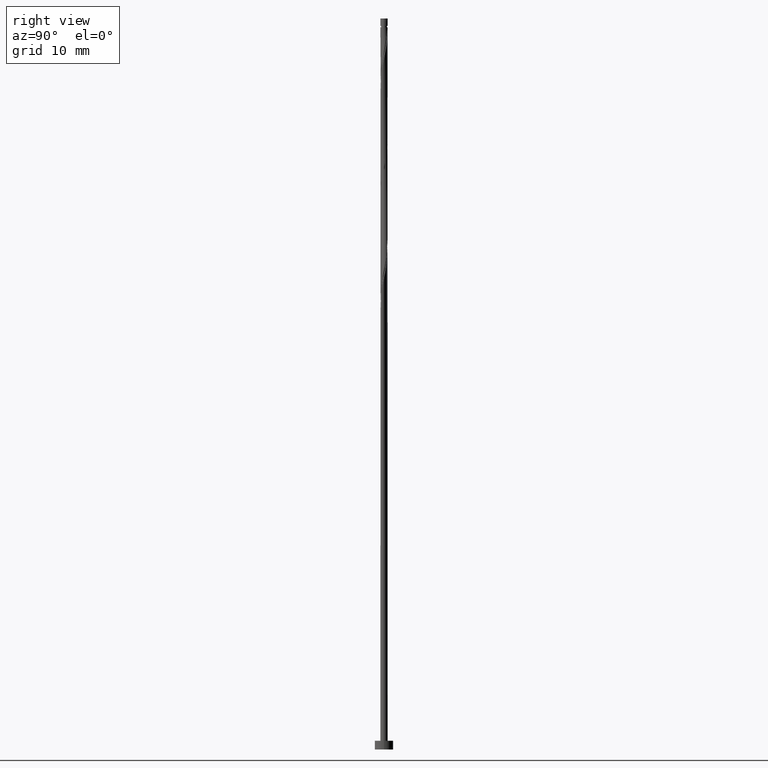
[diagram: clean part render]
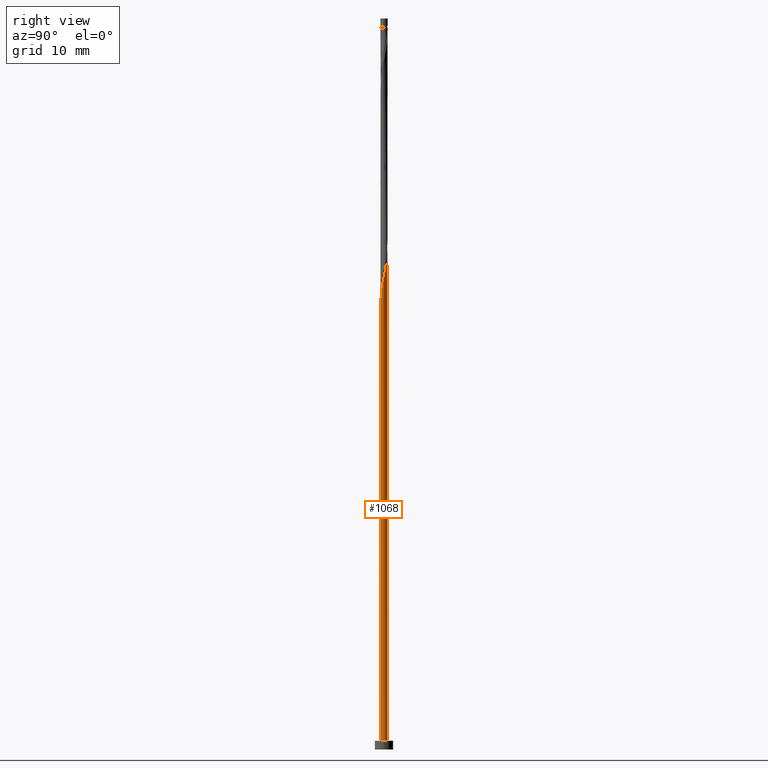
[diagram: same view with one face highlighted and labeled with its STEP entity id]
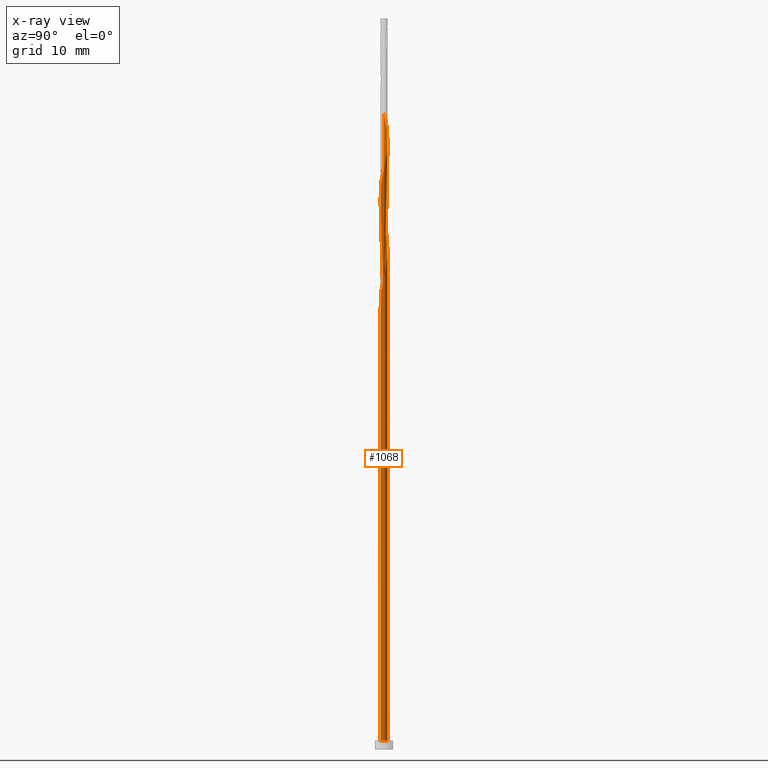
[diagram: x-ray of the same camera — body ghosted, the highlighted face saturated]
A machine part, right view. The second image highlights one B-rep face of the part: STEP entity #1068.
The next image is the same camera in x-ray: the body ghosted, the highlighted face saturated — about 0% of this face is hidden behind the body in this view.
In plain terms, the highlighted cylindrical surface (bore or boss wall) has radius 0.5 mm, axis along (-0, -0, -1).
Its self-contained STEP definition (entity closure, byte-faithful):
#3 = CARTESIAN_POINT ( 'NONE',  ( -0.4329970070769387780, 0.2651158103430555912, 56.71666666666666856 ) ) ;
#4 = CARTESIAN_POINT ( 'NONE',  ( 0.4460955302404527867, -0.2424285027197316811, 78.38333333333333997 ) ) ;
#11 = CARTESIAN_POINT ( 'NONE',  ( -0.2610881054719552674, 0.4264188096004513095, 84.63333333333332575 ) ) ;
#19 = CARTESIAN_POINT ( 'NONE',  ( -0.3911863884632766908, 0.3114052174917099070, 70.46666666666668277 ) ) ;
#24 = CARTESIAN_POINT ( 'NONE',  ( -0.5000000000000005551, 0.006450837166012286447, 57.99715376295075231 ) ) ;
#25 = CARTESIAN_POINT ( 'NONE',  ( -0.07409163498720072738, -0.4944799587697403798, 60.46666666666666146 ) ) ;
#28 =( BOUNDED_CURVE ( )  B_SPLINE_CURVE ( 2, ( #1048, #1336, #85, #518, #1256, #552, #332, #323, #109, #881, #25, #229, #1365, #1266, #982, #749, #855, #102, #862, #774, #316, #742, #1180, #967, #1064, #1280, #206, #974, #757, #220, #199, #1087, #1175, #633, #19, #654, #213, #457, #450, #1060, #1167, #96, #959, #442, #537, #560, #1079, #118, #647, #638, #872, #1287, #340, #4, #766, #530, #434, #1188, #662, #127, #1273, #1296, #427, #1072, #349, #952, #850, #545, #11, #914, #363, #1100, #1214, #1196, #1124 ),
 .UNSPECIFIED., .F., .T. ) 
 B_SPLINE_CURVE_WITH_KNOTS ( ( 3, 2, 2, 2, 2, 2, 2, 2, 2, 2, 2, 2, 2, 2, 2, 2, 2, 2, 2, 2, 2, 2, 2, 2, 2, 2, 2, 2, 2, 2, 2, 2, 2, 2, 2, 2, 2, 3 ),
 ( 0.05452480538552907652, 0.05555555555555558023, 0.06944444444444441977, 0.08333333333333337034, 0.09722222222222220989, 0.1111111111111111605, 0.1250000000000000000, 0.1388888888888888395, 0.1527777777777777901, 0.1666666666666666297, 0.1805555555555555802, 0.1944444444444444198, 0.2083333333333333703, 0.2222222222222222099, 0.2361111111111111605, 0.2500000000000000000, 0.2638888888888888395, 0.2777777777777777901, 0.2916666666666666297, 0.3055555555555555802, 0.3194444444444444198, 0.3333333333333333703, 0.3472222222222222099, 0.3611111111111111605, 0.3750000000000000000, 0.3888888888888888395, 0.4027777777777777901, 0.4166666666666666297, 0.4305555555555555802, 0.4444444444444444198, 0.4583333333333333703, 0.4722222222222222099, 0.4861111111111111605, 0.5000000000000000000, 0.5138888888888888395, 0.5277777777777777901, 0.5416666666666667407, 0.5545248053855292847 ),
 .UNSPECIFIED. ) 
 CURVE ( )  GEOMETRIC_REPRESENTATION_ITEM ( )  RATIONAL_B_SPLINE_CURVE ( ( 0.9071930855141276950, 0.9080659294509753066, 0.9090909090909153889, 0.8952797754656498519, 0.9090909090909153889, 0.8952797754656498519, 0.9090909090909153889, 0.8952797754656498519, 0.9090909090909153889, 0.8952797754656498519, 0.9090909090909153889, 0.8952797754656498519, 0.9090909090909153889, 0.8952797754656498519, 0.9090909090909153889, 0.8952797754656498519, 0.9090909090909153889, 0.8952797754656498519, 0.9090909090909153889, 0.8952797754656498519, 0.9090909090909153889, 0.8952797754656498519, 0.9090909090909153889, 0.8952797754656498519, 0.9090909090909153889, 0.8952797754656498519, 0.9090909090909153889, 0.8952797754656498519, 0.9090909090909153889, 0.8952797754656498519, 0.9090909090909153889, 0.8952797754656498519, 0.9090909090909153889, 0.8952797754656498519, 0.9090909090909153889, 0.8952797754656498519, 0.9090909090909153889, 0.8952797754656498519, 0.9090909090909153889, 0.8952797754656498519, 0.9090909090909153889, 0.8952797754656498519, 0.9090909090909153889, 0.8952797754656498519, 0.9090909090909153889, 0.8952797754656498519, 0.9090909090909153889, 0.8952797754656498519, 0.9090909090909153889, 0.8952797754656498519, 0.9090909090909153889, 0.8952797754656498519, 0.9090909090909153889, 0.8952797754656498519, 0.9090909090909153889, 0.8952797754656498519, 0.9090909090909153889, 0.8952797754656498519, 0.9090909090909153889, 0.8952797754656498519, 0.9090909090909153889, 0.8952797754656498519, 0.9090909090909153889, 0.8952797754656498519, 0.9090909090909153889, 0.8952797754656498519, 0.9090909090909153889, 0.8952797754656498519, 0.9090909090909153889, 0.8952797754656498519, 0.9090909090909153889, 0.8952797754656498519, 0.9090909090909153889, 0.8963047551055898232, 0.9071930855141279171 ) ) 
 REPRESENTATION_ITEM ( '' )  );
#73 = ORIENTED_EDGE ( 'NONE', *, *, #576, .T. ) ;
#77 = EDGE_CURVE ( 'NONE', #803, #916, #131, .T. ) ;
#85 = CARTESIAN_POINT ( 'NONE',  ( -0.4998335745014880205, -0.01289952716443847763, 57.13333333333333997 ) ) ;
#96 = CARTESIAN_POINT ( 'NONE',  ( -0.4329970070769388890, -0.2651158103430555912, 73.38333333333331154 ) ) ;
#102 = CARTESIAN_POINT ( 'NONE',  ( 0.4460955302404527867, -0.2424285027197316811, 63.38333333333333286 ) ) ;
#103 = CARTESIAN_POINT ( 'NONE',  ( -0.4741018197097065512, 0.1588315603019300748, 56.30000000000001137 ) ) ;
#108 = CARTESIAN_POINT ( 'NONE',  ( -0.5000000000000006661, -4.855164127740446616E-16, 58.02776939948987689 ) ) ;
#109 = CARTESIAN_POINT ( 'NONE',  ( -0.2387454690295328918, -0.4393183367648896831, 59.63333333333333286 ) ) ;
#116 = CARTESIAN_POINT ( 'NONE',  ( -0.2387454690295328086, 0.4393183367648896831, 55.46666666666666856 ) ) ;
#118 = CARTESIAN_POINT ( 'NONE',  ( 0.01309852316351374675, -0.5075443130627872446, 75.88333333333333997 ) ) ;
#127 = CARTESIAN_POINT ( 'NONE',  ( 0.4329970070769391111, 0.2651158103430553137, 80.88333333333332575 ) ) ;
#131 = LINE ( 'NONE', #151, #1026 ) ;
#141 = DIRECTION ( 'NONE',  ( 0.000000000000000000, 0.000000000000000000, 1.000000000000000000 ) ) ;
#151 = CARTESIAN_POINT ( 'NONE',  ( -0.5000000000000000000, 0.000000000000000000, 100.0000000000000000 ) ) ;
#164 = DIRECTION ( 'NONE',  ( 1.000000000000000000, 0.000000000000000000, 0.000000000000000000 ) ) ;
#176 = EDGE_CURVE ( 'NONE', #1197, #1239, #951, .T. ) ;
#199 = CARTESIAN_POINT ( 'NONE',  ( -0.09949874371066179390, 0.4900000000000008238, 68.79999999999996874 ) ) ;
#206 = CARTESIAN_POINT ( 'NONE',  ( 0.2387454690295330029, 0.4393183367648896831, 67.13333333333333997 ) ) ;
#213 = CARTESIAN_POINT ( 'NONE',  ( -0.4741018197097065512, 0.1588315603019300748, 71.30000000000002558 ) ) ;
#217 = EDGE_CURVE ( 'NONE', #690, #1226, #259, .T. ) ;
#220 = CARTESIAN_POINT ( 'NONE',  ( -0.01309852316351389420, 0.5075443130627871335, 68.38333333333332575 ) ) ;
#229 = CARTESIAN_POINT ( 'NONE',  ( 0.01309852316351374675, -0.5075443130627872446, 60.88333333333334707 ) ) ;
#237 = ORIENTED_EDGE ( 'NONE', *, *, #1308, .F. ) ;
#238 = DIRECTION ( 'NONE',  ( 0.000000000000000000, -0.000000000000000000, -1.000000000000000000 ) ) ;
#239 = DIRECTION ( 'NONE',  ( 0.000000000000000000, 0.000000000000000000, 1.000000000000000000 ) ) ;
#259 = CIRCLE ( 'NONE', #514, 0.5000000000000000000 ) ;
#264 = EDGE_CURVE ( 'NONE', #1288, #1239, #1176, .T. ) ;
#316 = CARTESIAN_POINT ( 'NONE',  ( 0.4998335745014880205, 0.01289952716443851580, 64.63333333333333997 ) ) ;
#323 = CARTESIAN_POINT ( 'NONE',  ( -0.3162091449211504868, -0.3972210690530860178, 59.21666666666666856 ) ) ;
#332 = CARTESIAN_POINT ( 'NONE',  ( -0.3746030759990447989, -0.3311684396980705825, 58.80000000000001137 ) ) ;
#340 = CARTESIAN_POINT ( 'NONE',  ( 0.3911863884632766908, -0.3114052174917099070, 77.96666666666665435 ) ) ;
#342 = CARTESIAN_POINT ( 'NONE',  ( -0.3911863884632766908, 0.3114052174917099070, 55.46666666666667567 ) ) ;
#349 = CARTESIAN_POINT ( 'NONE',  ( 0.07409163498720100494, 0.4944799587697403798, 82.96666666666666856 ) ) ;
#356 = EDGE_CURVE ( 'NONE', #690, #1288, #789, .T. ) ;
#357 = CARTESIAN_POINT ( 'NONE',  ( 0.000000000000000000, 0.000000000000000000, 100.0000000000000000 ) ) ;
#363 = CARTESIAN_POINT ( 'NONE',  ( -0.3911863884632766908, 0.3114052174917099070, 85.46666666666666856 ) ) ;
#389 = CYLINDRICAL_SURFACE ( 'NONE', #544, 0.5000000000000000000 ) ;
#391 = ORIENTED_EDGE ( 'NONE', *, *, #356, .F. ) ;
#398 = ORIENTED_EDGE ( 'NONE', *, *, #176, .T. ) ;
#427 = CARTESIAN_POINT ( 'NONE',  ( 0.2387454690295330029, 0.4393183367648896831, 82.13333333333335418 ) ) ;
#434 = CARTESIAN_POINT ( 'NONE',  ( 0.4998335745014880205, 0.01289952716443851580, 79.63333333333333997 ) ) ;
#442 = CARTESIAN_POINT ( 'NONE',  ( -0.3162091449211504868, -0.3972210690530860178, 74.21666666666671119 ) ) ;
#447 = VECTOR ( 'NONE', #1366, 1000.000000000000000 ) ;
#450 = CARTESIAN_POINT ( 'NONE',  ( -0.4998335745014880205, -0.01289952716443847763, 72.13333333333333997 ) ) ;
#452 = CARTESIAN_POINT ( 'NONE',  ( -0.1858989642578099122, 0.4724556869372144030, 54.21666666666667567 ) ) ;
#456 = CARTESIAN_POINT ( 'NONE',  ( -0.3162091449211504313, 0.3972210690530858512, 55.88333333333333286 ) ) ;
#457 = CARTESIAN_POINT ( 'NONE',  ( -0.5021081091789604267, 0.07523461788412853790, 71.71666666666666856 ) ) ;
#464 = ORIENTED_EDGE ( 'NONE', *, *, #77, .F. ) ;
#505 = EDGE_LOOP ( 'NONE', ( #464, #991, #1216, #73, #398, #983, #391, #1335, #237 ) ) ;
#514 = AXIS2_PLACEMENT_3D ( 'NONE', #1190, #238, #1169 ) ;
#518 = CARTESIAN_POINT ( 'NONE',  ( -0.4975590398240160028, -0.1010336722130054932, 57.54999999999999716 ) ) ;
#530 = CARTESIAN_POINT ( 'NONE',  ( 0.5021081091789604267, -0.07523461788412882933, 79.21666666666668277 ) ) ;
#537 = CARTESIAN_POINT ( 'NONE',  ( -0.2387454690295328918, -0.4393183367648896831, 74.63333333333331154 ) ) ;
#543 = CARTESIAN_POINT ( 'NONE',  ( -0.1612817931379151581, 0.4814156044766936260, 55.04999999999999716 ) ) ;
#544 = AXIS2_PLACEMENT_3D ( 'NONE', #357, #1224, #1013 ) ;
#545 = CARTESIAN_POINT ( 'NONE',  ( -0.1858989642578099122, 0.4724556869372144030, 84.21666666666665435 ) ) ;
#552 = CARTESIAN_POINT ( 'NONE',  ( -0.4329970070769388890, -0.2651158103430555912, 58.38333333333332575 ) ) ;
#560 = CARTESIAN_POINT ( 'NONE',  ( -0.1612817931379152137, -0.4814156044766937370, 75.05000000000001137 ) ) ;
#564 = CARTESIAN_POINT ( 'NONE',  ( 0.000000000000000000, 0.000000000000000000, 1.199999999999999956 ) ) ;
#576 = EDGE_CURVE ( 'NONE', #1239, #1197, #639, .T. ) ;
#602 = CARTESIAN_POINT ( 'NONE',  ( -0.5000000000000007772, -9.803696796398973244E-17, 87.07223060051012453 ) ) ;
#633 = CARTESIAN_POINT ( 'NONE',  ( -0.3362772466861007059, 0.3803819322636883271, 70.04999999999998295 ) ) ;
#637 = CARTESIAN_POINT ( 'NONE',  ( 0.09949874371066202983, 0.4900000000000007683, 53.79999999999999716 ) ) ;
#638 = CARTESIAN_POINT ( 'NONE',  ( 0.1858989642578097734, -0.4724556869372145695, 76.71666666666665435 ) ) ;
#639 = CIRCLE ( 'NONE', #948, 0.5000000000000000000 ) ;
#647 = CARTESIAN_POINT ( 'NONE',  ( 0.09949874371066182166, -0.4900000000000008238, 76.30000000000002558 ) ) ;
#654 = CARTESIAN_POINT ( 'NONE',  ( -0.4460955302404527867, 0.2424285027197316256, 70.88333333333332575 ) ) ;
#662 = CARTESIAN_POINT ( 'NONE',  ( 0.4652780234504774182, 0.1830747412780303895, 80.46666666666668277 ) ) ;
#664 = CARTESIAN_POINT ( 'NONE',  ( -0.3362772466861007059, 0.3803819322636883271, 55.05000000000001137 ) ) ;
#675 = CARTESIAN_POINT ( 'NONE',  ( -0.5000000000000007772, 5.434049081432574150E-16, 57.07223060051013164 ) ) ;
#686 = DIRECTION ( 'NONE',  ( -0.000000000000000000, -0.000000000000000000, -1.000000000000000000 ) ) ;
#690 = VERTEX_POINT ( 'NONE', #691 ) ;
#691 = CARTESIAN_POINT ( 'NONE',  ( -0.09949874371066178003, 0.4900000000000008793, 53.79999999999999716 ) ) ;
#741 = CARTESIAN_POINT ( 'NONE',  ( -0.07409163498720063024, 0.4944799587697402687, 54.63333333333333286 ) ) ;
#742 = CARTESIAN_POINT ( 'NONE',  ( 0.4975590398240160028, 0.1010336722130053960, 65.04999999999999716 ) ) ;
#748 = CARTESIAN_POINT ( 'NONE',  ( 0.01309852316351392196, 0.5075443130627870225, 54.21666666666666146 ) ) ;
#749 = CARTESIAN_POINT ( 'NONE',  ( 0.3362772466861005394, -0.3803819322636883271, 62.55000000000001137 ) ) ;
#750 = AXIS2_PLACEMENT_3D ( 'NONE', #564, #239, #1103 ) ;
#757 = CARTESIAN_POINT ( 'NONE',  ( 0.07409163498720100494, 0.4944799587697403798, 67.96666666666666856 ) ) ;
#759 = CARTESIAN_POINT ( 'NONE',  ( -0.2610881054719552674, 0.4264188096004513095, 54.63333333333332575 ) ) ;
#765 = CARTESIAN_POINT ( 'NONE',  ( -0.4975590398240158918, 0.1010336722130055070, 57.55000000000001137 ) ) ;
#766 = CARTESIAN_POINT ( 'NONE',  ( 0.4741018197097065512, -0.1588315603019302691, 78.80000000000001137 ) ) ;
#774 = CARTESIAN_POINT ( 'NONE',  ( 0.5021081091789604267, -0.07523461788412882933, 64.21666666666666856 ) ) ;
#789 =( BOUNDED_CURVE ( )  B_SPLINE_CURVE ( 2, ( #1081, #452, #759, #664, #342, #865, #103, #1289, #1281 ),
 .UNSPECIFIED., .F., .T. ) 
 B_SPLINE_CURVE_WITH_KNOTS ( ( 3, 2, 2, 2, 3 ),
 ( 0.000000000000000000, 0.01388888888888883955, 0.02777777777777779011, 0.04166666666666662966, 0.05452480538552906958 ),
 .UNSPECIFIED. ) 
 CURVE ( )  GEOMETRIC_REPRESENTATION_ITEM ( )  RATIONAL_B_SPLINE_CURVE ( ( 0.9090909090909153889, 0.8952797754656498519, 0.9090909090909153889, 0.8952797754656498519, 0.9090909090909153889, 0.8952797754656498519, 0.9090909090909153889, 0.8963047551055899342, 0.9071930855141276950 ) ) 
 REPRESENTATION_ITEM ( '' )  );
#801 = CARTESIAN_POINT ( 'NONE',  ( 0.5000000000000000000, 0.000000000000000000, 1.199999999999999956 ) ) ;
#803 = VERTEX_POINT ( 'NONE', #602 ) ;
#850 = CARTESIAN_POINT ( 'NONE',  ( -0.09949874371066179390, 0.4900000000000008238, 83.80000000000002558 ) ) ;
#855 = CARTESIAN_POINT ( 'NONE',  ( 0.3911863884632766908, -0.3114052174917099070, 62.96666666666668277 ) ) ;
#862 = CARTESIAN_POINT ( 'NONE',  ( 0.4741018197097065512, -0.1588315603019302691, 63.79999999999999716 ) ) ;
#865 = CARTESIAN_POINT ( 'NONE',  ( -0.4460955302404527867, 0.2424285027197316256, 55.88333333333333997 ) ) ;
#870 = CARTESIAN_POINT ( 'NONE',  ( -0.3746030759990446324, 0.3311684396980706935, 56.29999999999999716 ) ) ;
#872 = CARTESIAN_POINT ( 'NONE',  ( 0.2610881054719552119, -0.4264188096004513095, 77.13333333333329733 ) ) ;
#881 = CARTESIAN_POINT ( 'NONE',  ( -0.1612817931379152137, -0.4814156044766937370, 60.04999999999999716 ) ) ;
#914 = CARTESIAN_POINT ( 'NONE',  ( -0.3362772466861007059, 0.3803819322636883271, 85.04999999999998295 ) ) ;
#916 = VERTEX_POINT ( 'NONE', #1261 ) ;
#948 = AXIS2_PLACEMENT_3D ( 'NONE', #1227, #141, #164 ) ;
#951 = CIRCLE ( 'NONE', #750, 0.5000000000000000000 ) ;
#952 = CARTESIAN_POINT ( 'NONE',  ( -0.01309852316351389420, 0.5075443130627871335, 83.38333333333332575 ) ) ;
#959 = CARTESIAN_POINT ( 'NONE',  ( -0.3746030759990447989, -0.3311684396980705825, 73.80000000000001137 ) ) ;
#960 = CARTESIAN_POINT ( 'NONE',  ( -0.5000000000000000000, 0.000000000000000000, 100.0000000000000000 ) ) ;
#966 = EDGE_CURVE ( 'NONE', #1288, #803, #28, .T. ) ;
#967 = CARTESIAN_POINT ( 'NONE',  ( 0.4329970070769391111, 0.2651158103430553137, 65.88333333333333997 ) ) ;
#974 = CARTESIAN_POINT ( 'NONE',  ( 0.1612817931379155190, 0.4814156044766936260, 67.54999999999999716 ) ) ;
#982 = CARTESIAN_POINT ( 'NONE',  ( 0.2610881054719552119, -0.4264188096004513095, 62.13333333333333997 ) ) ;
#983 = ORIENTED_EDGE ( 'NONE', *, *, #264, .F. ) ;
#991 = ORIENTED_EDGE ( 'NONE', *, *, #966, .F. ) ;
#993 =( BOUNDED_CURVE ( )  B_SPLINE_CURVE ( 2, ( #108, #24, #1086, #765, #1187, #3, #870, #456, #116, #543, #741, #748, #637 ),
 .UNSPECIFIED., .F., .T. ) 
 B_SPLINE_CURVE_WITH_KNOTS ( ( 3, 2, 2, 2, 2, 2, 3 ),
 ( 0.9295248053855293957, 0.9305555555555555802, 0.9444444444444444198, 0.9583333333333333703, 0.9722222222222222099, 0.9861111111111111605, 1.000000000000000000 ),
 .UNSPECIFIED. ) 
 CURVE ( )  GEOMETRIC_REPRESENTATION_ITEM ( )  RATIONAL_B_SPLINE_CURVE ( ( 0.9071930855141279171, 0.9080659294509753066, 0.9090909090909150558, 0.8952797754656496299, 0.9090909090909150558, 0.8952797754656496299, 0.9090909090909150558, 0.8952797754656496299, 0.9090909090909150558, 0.8952797754656496299, 0.9090909090909150558, 0.8952797754656496299, 0.9090909090909150558 ) ) 
 REPRESENTATION_ITEM ( '' )  );
#998 = CARTESIAN_POINT ( 'NONE',  ( 0.09949874371066201595, 0.4900000000000007683, 53.79999999999999716 ) ) ;
#1013 = DIRECTION ( 'NONE',  ( -1.000000000000000000, 0.000000000000000000, 0.000000000000000000 ) ) ;
#1026 = VECTOR ( 'NONE', #686, 1000.000000000000000 ) ;
#1048 = CARTESIAN_POINT ( 'NONE',  ( -0.5000000000000007772, 5.434049081432574150E-16, 57.07223060051013164 ) ) ;
#1060 = CARTESIAN_POINT ( 'NONE',  ( -0.4975590398240160028, -0.1010336722130054932, 72.55000000000001137 ) ) ;
#1064 = CARTESIAN_POINT ( 'NONE',  ( 0.3746030759990447989, 0.3311684396980708045, 66.29999999999998295 ) ) ;
#1068 = ADVANCED_FACE ( 'NONE', ( #1307 ), #389, .T. ) ;
#1072 = CARTESIAN_POINT ( 'NONE',  ( 0.1612817931379155190, 0.4814156044766936260, 82.55000000000001137 ) ) ;
#1079 = CARTESIAN_POINT ( 'NONE',  ( -0.07409163498720072738, -0.4944799587697403798, 75.46666666666666856 ) ) ;
#1081 = CARTESIAN_POINT ( 'NONE',  ( -0.09949874371066179390, 0.4900000000000008793, 53.79999999999999716 ) ) ;
#1086 = CARTESIAN_POINT ( 'NONE',  ( -0.4998335745014880205, 0.01289952716443853141, 57.96666666666667567 ) ) ;
#1087 = CARTESIAN_POINT ( 'NONE',  ( -0.1858989642578099122, 0.4724556869372144030, 69.21666666666666856 ) ) ;
#1100 = CARTESIAN_POINT ( 'NONE',  ( -0.4460955302404527867, 0.2424285027197316256, 85.88333333333335418 ) ) ;
#1103 = DIRECTION ( 'NONE',  ( 1.000000000000000000, 0.000000000000000000, 0.000000000000000000 ) ) ;
#1124 = CARTESIAN_POINT ( 'NONE',  ( -0.5000000000000007772, -9.803696796398973244E-17, 87.07223060051012453 ) ) ;
#1167 = CARTESIAN_POINT ( 'NONE',  ( -0.4652780234504773071, -0.1830747412780305006, 72.96666666666665435 ) ) ;
#1169 = DIRECTION ( 'NONE',  ( -1.000000000000000000, 0.000000000000000000, 0.000000000000000000 ) ) ;
#1175 = CARTESIAN_POINT ( 'NONE',  ( -0.2610881054719552674, 0.4264188096004513095, 69.63333333333335418 ) ) ;
#1176 = LINE ( 'NONE', #960, #447 ) ;
#1180 = CARTESIAN_POINT ( 'NONE',  ( 0.4652780234504774182, 0.1830747412780303895, 65.46666666666666856 ) ) ;
#1187 = CARTESIAN_POINT ( 'NONE',  ( -0.4652780234504771961, 0.1830747412780305838, 57.13333333333332575 ) ) ;
#1188 = CARTESIAN_POINT ( 'NONE',  ( 0.4975590398240160028, 0.1010336722130053960, 80.04999999999998295 ) ) ;
#1190 = CARTESIAN_POINT ( 'NONE',  ( 0.000000000000000000, 0.000000000000000000, 53.80000000000000426 ) ) ;
#1196 = CARTESIAN_POINT ( 'NONE',  ( -0.5000000000000011102, 0.08152718591022742323, 86.68530303938103998 ) ) ;
#1197 = VERTEX_POINT ( 'NONE', #801 ) ;
#1214 = CARTESIAN_POINT ( 'NONE',  ( -0.4741018197097065512, 0.1588315603019300748, 86.29999999999999716 ) ) ;
#1216 = ORIENTED_EDGE ( 'NONE', *, *, #264, .T. ) ;
#1224 = DIRECTION ( 'NONE',  ( -0.000000000000000000, -0.000000000000000000, -1.000000000000000000 ) ) ;
#1226 = VERTEX_POINT ( 'NONE', #998 ) ;
#1227 = CARTESIAN_POINT ( 'NONE',  ( 0.000000000000000000, 0.000000000000000000, 1.199999999999999956 ) ) ;
#1239 = VERTEX_POINT ( 'NONE', #1327 ) ;
#1256 = CARTESIAN_POINT ( 'NONE',  ( -0.4652780234504773071, -0.1830747412780305006, 57.96666666666666146 ) ) ;
#1261 = CARTESIAN_POINT ( 'NONE',  ( -0.5000000000000006661, -4.855164127740446616E-16, 58.02776939948987689 ) ) ;
#1266 = CARTESIAN_POINT ( 'NONE',  ( 0.1858989642578097734, -0.4724556869372145695, 61.71666666666666146 ) ) ;
#1273 = CARTESIAN_POINT ( 'NONE',  ( 0.3746030759990447989, 0.3311684396980708045, 81.29999999999999716 ) ) ;
#1280 = CARTESIAN_POINT ( 'NONE',  ( 0.3162091449211505423, 0.3972210690530860178, 66.71666666666666856 ) ) ;
#1281 = CARTESIAN_POINT ( 'NONE',  ( -0.5000000000000007772, 5.434049081432574150E-16, 57.07223060051013164 ) ) ;
#1287 = CARTESIAN_POINT ( 'NONE',  ( 0.3362772466861005394, -0.3803819322636883271, 77.54999999999999716 ) ) ;
#1288 = VERTEX_POINT ( 'NONE', #675 ) ;
#1289 = CARTESIAN_POINT ( 'NONE',  ( -0.5000000000000007772, 0.08152718591022869998, 56.68530303938106840 ) ) ;
#1296 = CARTESIAN_POINT ( 'NONE',  ( 0.3162091449211505423, 0.3972210690530860178, 81.71666666666665435 ) ) ;
#1307 = FACE_OUTER_BOUND ( 'NONE', #505, .T. ) ;
#1308 = EDGE_CURVE ( 'NONE', #916, #1226, #993, .T. ) ;
#1327 = CARTESIAN_POINT ( 'NONE',  ( -0.5000000000000000000, 0.000000000000000000, 1.199999999999999956 ) ) ;
#1335 = ORIENTED_EDGE ( 'NONE', *, *, #217, .T. ) ;
#1336 = CARTESIAN_POINT ( 'NONE',  ( -0.5000000000000007772, -0.006450837166010229932, 57.10284623704924911 ) ) ;
#1365 = CARTESIAN_POINT ( 'NONE',  ( 0.09949874371066182166, -0.4900000000000008238, 61.29999999999999716 ) ) ;
#1366 = DIRECTION ( 'NONE',  ( -0.000000000000000000, -0.000000000000000000, -1.000000000000000000 ) ) ;